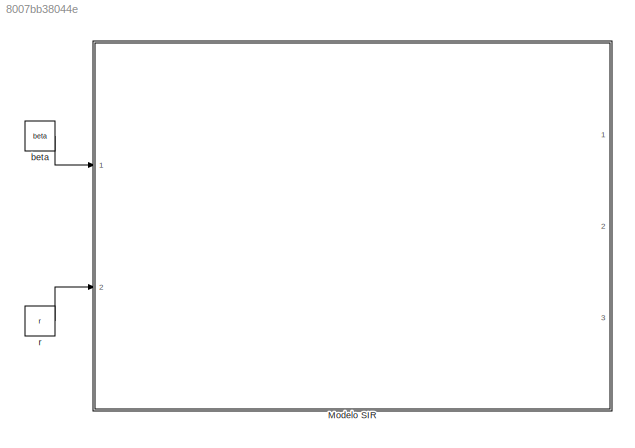
MODEL slx_8007bb38044e
KIND model
CONFIG AbsTol = auto
CONFIG EnableMultiTasking = off
CONFIG FixedStep = auto
CONFIG MaxStep = 0.1001
CONFIG MinStep = 0.100
CONFIG RelTol = 1e-3
CONFIG SampleTimeConstraint = Unconstrained
CONFIG SolverName = VariableStepAuto
CONFIG StartTime = 0.0
CONFIG StopTime = 100
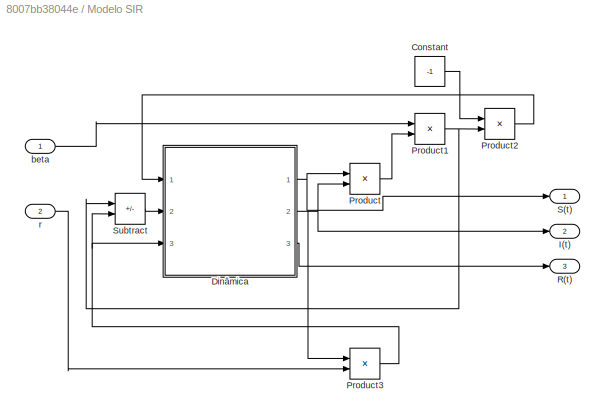
BLOCK [SubSystem] Modelo SIR
  Ports = [2, 3]
  RequestExecContextInheritance = off
BLOCK [Constant] Modelo SIR/Constant
  Value = -1
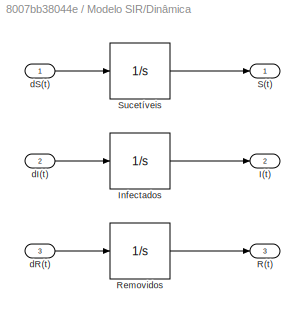
BLOCK [SubSystem] Modelo SIR/Dinâmica
  Ports = [3, 3]
  RequestExecContextInheritance = off
BLOCK [Outport] Modelo SIR/Dinâmica/I(t)
  Port = 2
BLOCK [Integrator] Modelo SIR/Dinâmica/Infectados
  InitialCondition = I0
  Ports = [1, 1]
BLOCK [Outport] Modelo SIR/Dinâmica/R(t)
  Port = 3
BLOCK [Integrator] Modelo SIR/Dinâmica/Removidos
  InitialCondition = R0
  Ports = [1, 1]
BLOCK [Outport] Modelo SIR/Dinâmica/S(t)
BLOCK [Integrator] Modelo SIR/Dinâmica/Sucetíveis
  InitialCondition = S0
  Ports = [1, 1]
BLOCK [Inport] Modelo SIR/Dinâmica/dI(t)
  Port = 2
BLOCK [Inport] Modelo SIR/Dinâmica/dR(t)
  Port = 3
BLOCK [Inport] Modelo SIR/Dinâmica/dS(t)
BLOCK [Outport] Modelo SIR/I(t)
  Port = 2
BLOCK [Product] Modelo SIR/Product
  Ports = [2, 1]
BLOCK [Product] Modelo SIR/Product1
  Ports = [2, 1]
BLOCK [Product] Modelo SIR/Product2
  Ports = [2, 1]
BLOCK [Product] Modelo SIR/Product3
  Ports = [2, 1]
BLOCK [Outport] Modelo SIR/R(t)
  Port = 3
BLOCK [Outport] Modelo SIR/S(t)
BLOCK [Sum] Modelo SIR/Subtract
  IconShape = rectangular
  Inputs = +-
  Ports = [2, 1]
BLOCK [Inport] Modelo SIR/beta
BLOCK [Inport] Modelo SIR/r
  Port = 2
BLOCK [Constant] beta
  Value = beta
BLOCK [Constant] r
  Value = r
LINE Modelo SIR/Constant:1 -> Modelo SIR/Product2:1
LINE Modelo SIR/Dinâmica/Infectados:1 -> Modelo SIR/Dinâmica/I(t):1
LINE Modelo SIR/Dinâmica/Removidos:1 -> Modelo SIR/Dinâmica/R(t):1
LINE Modelo SIR/Dinâmica/Sucetíveis:1 -> Modelo SIR/Dinâmica/S(t):1
LINE Modelo SIR/Dinâmica/dI(t):1 -> Modelo SIR/Dinâmica/Infectados:1
LINE Modelo SIR/Dinâmica/dR(t):1 -> Modelo SIR/Dinâmica/Removidos:1
LINE Modelo SIR/Dinâmica/dS(t):1 -> Modelo SIR/Dinâmica/Sucetíveis:1
NET Modelo SIR/Dinâmica:1 -> Modelo SIR/Product:1, Modelo SIR/S(t):1
NET Modelo SIR/Dinâmica:2 -> Modelo SIR/I(t):1, Modelo SIR/Product3:1, Modelo SIR/Product:2
LINE Modelo SIR/Dinâmica:3 -> Modelo SIR/R(t):1
NET Modelo SIR/Product1:1 -> Modelo SIR/Product2:2, Modelo SIR/Subtract:1
LINE Modelo SIR/Product2:1 -> Modelo SIR/Dinâmica:1
NET Modelo SIR/Product3:1 -> Modelo SIR/Dinâmica:3, Modelo SIR/Subtract:2
LINE Modelo SIR/Product:1 -> Modelo SIR/Product1:2
LINE Modelo SIR/Subtract:1 -> Modelo SIR/Dinâmica:2
LINE Modelo SIR/beta:1 -> Modelo SIR/Product1:1
LINE Modelo SIR/r:1 -> Modelo SIR/Product3:2
LINE beta:1 -> Modelo SIR:1
LINE r:1 -> Modelo SIR:2
note: NET lines group one-source signal fan-out (src -> all destinations, sorted); 1:1 wires keep LINE
